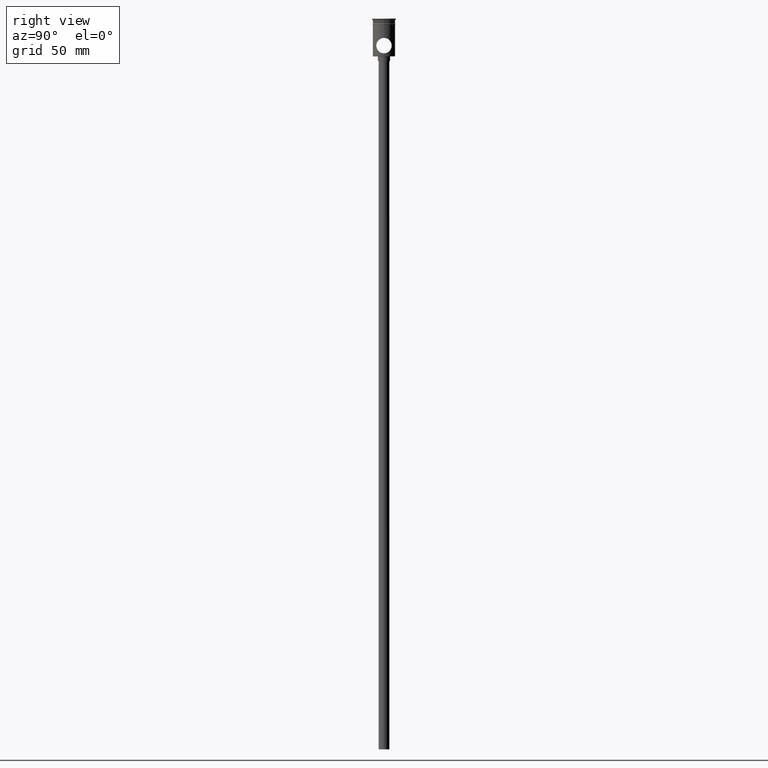
[diagram: clean part render]
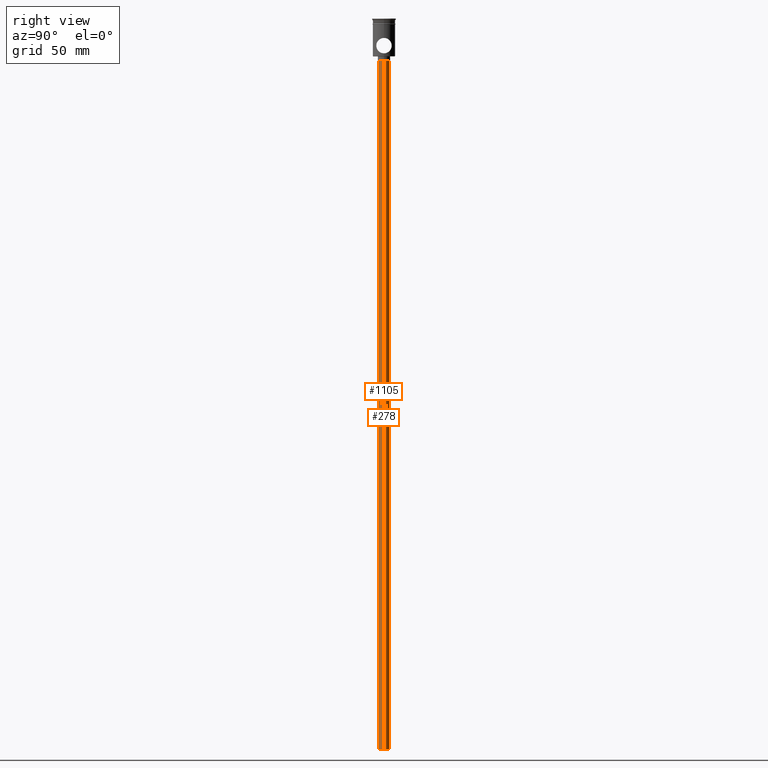
[diagram: same view with one multi-face feature highlighted, each face labeled with its STEP entity id]
A machine part, right view. The highlighted faces form ONE feature: a constant-radius fillet chain: 2 tangent blend faces with common blend radius 3.5 mm. The faces share edges in the B-rep.
Their STEP definitions:
[1] entity #1105 (Cylinder):
#47 = DIRECTION ( 'NONE',  ( 0.000000000000000000, 0.000000000000000000, -1.000000000000000000 ) ) ;
#56 = EDGE_CURVE ( 'NONE', #375, #888, #781, .T. ) ;
#60 = VECTOR ( 'NONE', #778, 1000.000000000000000 ) ;
#153 = CARTESIAN_POINT ( 'NONE',  ( 0.000000000000000000, 0.000000000000000000, -474.5000000000000568 ) ) ;
#167 = DIRECTION ( 'NONE',  ( -0.000000000000000000, -0.000000000000000000, 1.000000000000000000 ) ) ;
#200 = CARTESIAN_POINT ( 'NONE',  ( -3.500000000000000444, 4.286263797015737088E-16, -474.5000000000000568 ) ) ;
#280 = CYLINDRICAL_SURFACE ( 'NONE', #600, 3.500000000000000444 ) ;
#304 = CIRCLE ( 'NONE', #1399, 3.500000000000000444 ) ;
#375 = VERTEX_POINT ( 'NONE', #436 ) ;
#386 = VERTEX_POINT ( 'NONE', #200 ) ;
#436 = CARTESIAN_POINT ( 'NONE',  ( 3.500000000000000444, 0.000000000000000000, -474.5000000000000568 ) ) ;
#462 = CARTESIAN_POINT ( 'NONE',  ( -3.500000000000000444, 4.286263797015737088E-16, -27.50000000000000000 ) ) ;
#516 = ORIENTED_EDGE ( 'NONE', *, *, #533, .T. ) ;
#525 = CIRCLE ( 'NONE', #1423, 3.500000000000000444 ) ;
#533 = EDGE_CURVE ( 'NONE', #888, #950, #304, .T. ) ;
#536 = DIRECTION ( 'NONE',  ( -1.000000000000000000, 0.000000000000000000, 0.000000000000000000 ) ) ;
#600 = AXIS2_PLACEMENT_3D ( 'NONE', #933, #167, #1265 ) ;
#665 = VECTOR ( 'NONE', #1243, 1000.000000000000000 ) ;
#675 = LINE ( 'NONE', #875, #60 ) ;
#683 = ORIENTED_EDGE ( 'NONE', *, *, #56, .T. ) ;
#703 = EDGE_LOOP ( 'NONE', ( #1210, #1326, #683, #516 ) ) ;
#774 = EDGE_CURVE ( 'NONE', #375, #386, #525, .T. ) ;
#778 = DIRECTION ( 'NONE',  ( -0.000000000000000000, -0.000000000000000000, 1.000000000000000000 ) ) ;
#781 = LINE ( 'NONE', #1481, #665 ) ;
#875 = CARTESIAN_POINT ( 'NONE',  ( -3.500000000000000444, 4.286263797015737088E-16, -474.5000000000000568 ) ) ;
#888 = VERTEX_POINT ( 'NONE', #961 ) ;
#933 = CARTESIAN_POINT ( 'NONE',  ( 0.000000000000000000, 0.000000000000000000, -474.5000000000000568 ) ) ;
#950 = VERTEX_POINT ( 'NONE', #462 ) ;
#961 = CARTESIAN_POINT ( 'NONE',  ( 3.500000000000000444, 0.000000000000000000, -27.50000000000000000 ) ) ;
#1105 = ADVANCED_FACE ( 'NONE', ( #1169 ), #280, .T. ) ;
#1138 = CARTESIAN_POINT ( 'NONE',  ( 0.000000000000000000, 0.000000000000000000, -27.50000000000000000 ) ) ;
#1169 = FACE_OUTER_BOUND ( 'NONE', #703, .T. ) ;
#1210 = ORIENTED_EDGE ( 'NONE', *, *, #1247, .F. ) ;
#1243 = DIRECTION ( 'NONE',  ( -0.000000000000000000, -0.000000000000000000, 1.000000000000000000 ) ) ;
#1247 = EDGE_CURVE ( 'NONE', #386, #950, #675, .T. ) ;
#1251 = DIRECTION ( 'NONE',  ( -1.000000000000000000, 0.000000000000000000, 0.000000000000000000 ) ) ;
#1265 = DIRECTION ( 'NONE',  ( 1.000000000000000000, 0.000000000000000000, 0.000000000000000000 ) ) ;
#1326 = ORIENTED_EDGE ( 'NONE', *, *, #774, .F. ) ;
#1354 = DIRECTION ( 'NONE',  ( 0.000000000000000000, 0.000000000000000000, -1.000000000000000000 ) ) ;
#1399 = AXIS2_PLACEMENT_3D ( 'NONE', #1138, #1354, #1251 ) ;
#1423 = AXIS2_PLACEMENT_3D ( 'NONE', #153, #47, #536 ) ;
#1481 = CARTESIAN_POINT ( 'NONE',  ( 3.500000000000000444, 0.000000000000000000, -474.5000000000000568 ) ) ;
[2] entity #278 (Cylinder):
#24 = EDGE_CURVE ( 'NONE', #386, #375, #303, .T. ) ;
#56 = EDGE_CURVE ( 'NONE', #375, #888, #781, .T. ) ;
#60 = VECTOR ( 'NONE', #778, 1000.000000000000000 ) ;
#84 = DIRECTION ( 'NONE',  ( 1.000000000000000000, 0.000000000000000000, 0.000000000000000000 ) ) ;
#200 = CARTESIAN_POINT ( 'NONE',  ( -3.500000000000000444, 4.286263797015737088E-16, -474.5000000000000568 ) ) ;
#211 = FACE_OUTER_BOUND ( 'NONE', #883, .T. ) ;
#234 = EDGE_CURVE ( 'NONE', #950, #888, #856, .T. ) ;
#278 = ADVANCED_FACE ( 'NONE', ( #211 ), #1101, .T. ) ;
#302 = DIRECTION ( 'NONE',  ( 0.000000000000000000, 0.000000000000000000, -1.000000000000000000 ) ) ;
#303 = CIRCLE ( 'NONE', #1125, 3.500000000000000444 ) ;
#328 = AXIS2_PLACEMENT_3D ( 'NONE', #988, #736, #84 ) ;
#375 = VERTEX_POINT ( 'NONE', #436 ) ;
#386 = VERTEX_POINT ( 'NONE', #200 ) ;
#405 = ORIENTED_EDGE ( 'NONE', *, *, #56, .F. ) ;
#424 = DIRECTION ( 'NONE',  ( -1.000000000000000000, 0.000000000000000000, 0.000000000000000000 ) ) ;
#436 = CARTESIAN_POINT ( 'NONE',  ( 3.500000000000000444, 0.000000000000000000, -474.5000000000000568 ) ) ;
#440 = CARTESIAN_POINT ( 'NONE',  ( 0.000000000000000000, 0.000000000000000000, -474.5000000000000568 ) ) ;
#462 = CARTESIAN_POINT ( 'NONE',  ( -3.500000000000000444, 4.286263797015737088E-16, -27.50000000000000000 ) ) ;
#665 = VECTOR ( 'NONE', #1243, 1000.000000000000000 ) ;
#675 = LINE ( 'NONE', #875, #60 ) ;
#720 = CARTESIAN_POINT ( 'NONE',  ( 0.000000000000000000, 0.000000000000000000, -27.50000000000000000 ) ) ;
#736 = DIRECTION ( 'NONE',  ( -0.000000000000000000, -0.000000000000000000, 1.000000000000000000 ) ) ;
#742 = DIRECTION ( 'NONE',  ( -1.000000000000000000, 0.000000000000000000, 0.000000000000000000 ) ) ;
#747 = ORIENTED_EDGE ( 'NONE', *, *, #1247, .T. ) ;
#778 = DIRECTION ( 'NONE',  ( -0.000000000000000000, -0.000000000000000000, 1.000000000000000000 ) ) ;
#781 = LINE ( 'NONE', #1481, #665 ) ;
#856 = CIRCLE ( 'NONE', #1297, 3.500000000000000444 ) ;
#875 = CARTESIAN_POINT ( 'NONE',  ( -3.500000000000000444, 4.286263797015737088E-16, -474.5000000000000568 ) ) ;
#883 = EDGE_LOOP ( 'NONE', ( #1411, #747, #962, #405 ) ) ;
#888 = VERTEX_POINT ( 'NONE', #961 ) ;
#950 = VERTEX_POINT ( 'NONE', #462 ) ;
#961 = CARTESIAN_POINT ( 'NONE',  ( 3.500000000000000444, 0.000000000000000000, -27.50000000000000000 ) ) ;
#962 = ORIENTED_EDGE ( 'NONE', *, *, #234, .T. ) ;
#988 = CARTESIAN_POINT ( 'NONE',  ( 0.000000000000000000, 0.000000000000000000, -474.5000000000000568 ) ) ;
#1003 = DIRECTION ( 'NONE',  ( 0.000000000000000000, 0.000000000000000000, -1.000000000000000000 ) ) ;
#1101 = CYLINDRICAL_SURFACE ( 'NONE', #328, 3.500000000000000444 ) ;
#1125 = AXIS2_PLACEMENT_3D ( 'NONE', #440, #1003, #424 ) ;
#1243 = DIRECTION ( 'NONE',  ( -0.000000000000000000, -0.000000000000000000, 1.000000000000000000 ) ) ;
#1247 = EDGE_CURVE ( 'NONE', #386, #950, #675, .T. ) ;
#1297 = AXIS2_PLACEMENT_3D ( 'NONE', #720, #302, #742 ) ;
#1411 = ORIENTED_EDGE ( 'NONE', *, *, #24, .F. ) ;
#1481 = CARTESIAN_POINT ( 'NONE',  ( 3.500000000000000444, 0.000000000000000000, -474.5000000000000568 ) ) ;